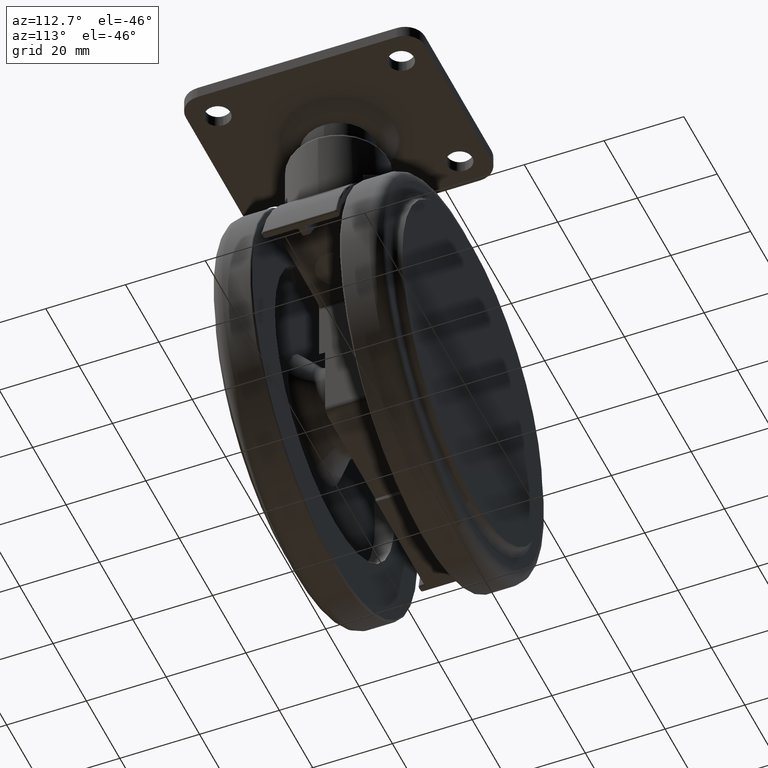
[diagram: clean part render]
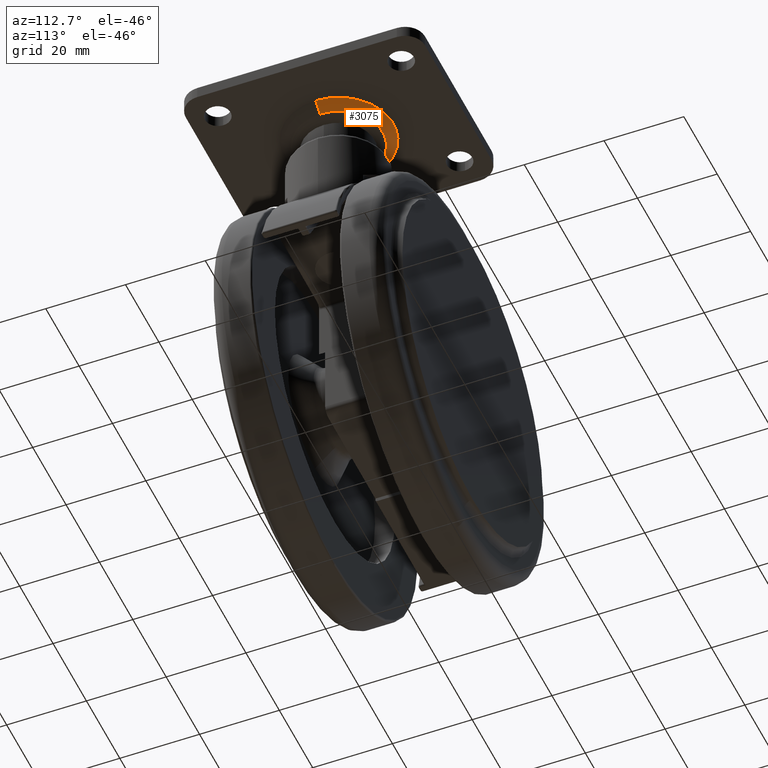
[diagram: same view with one face highlighted and labeled with its STEP entity id]
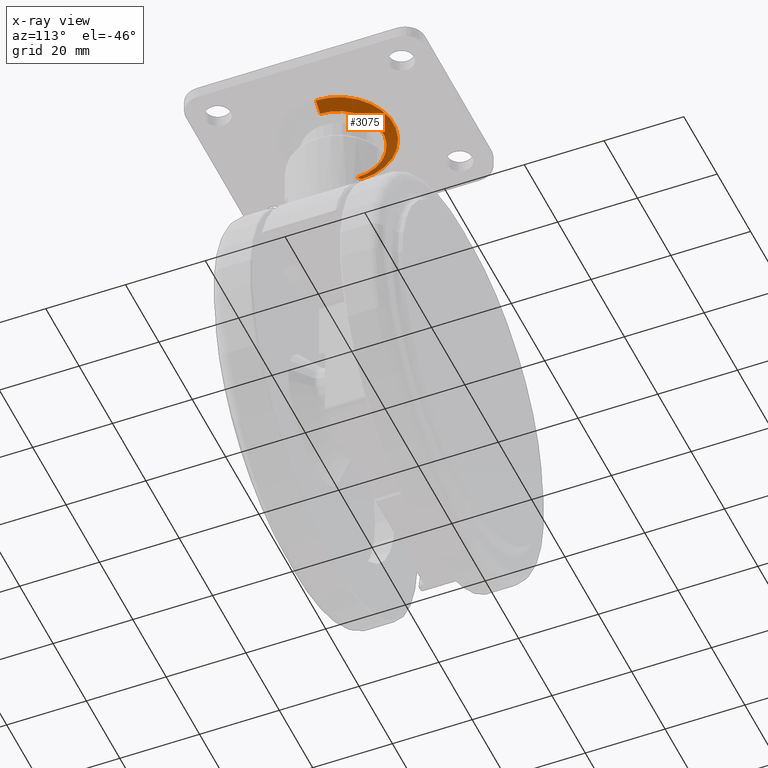
[diagram: x-ray of the same camera — body ghosted, the highlighted face saturated]
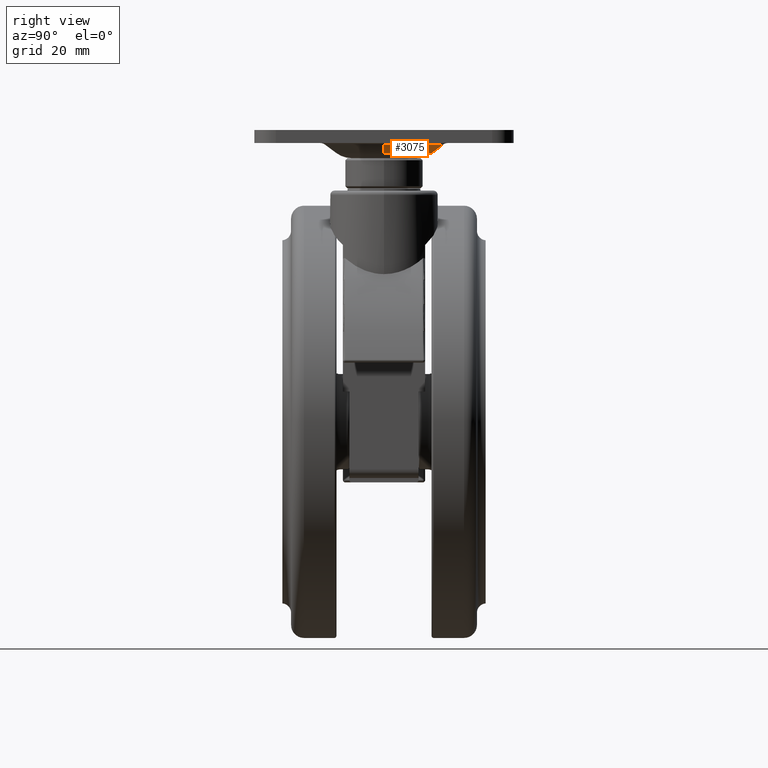
[diagram: same view with one face highlighted and labeled with its STEP entity id]
A machine part, auxiliary view. The second image highlights one B-rep face of the part: STEP entity #3075.
The next image is the same camera in x-ray: the body ghosted, the highlighted face saturated — about 9% of this face is hidden behind the body in this view.
A second angle (right view) of the same face is appended — the face is thin or edge-on in the first view.
In plain terms, the highlighted conical surface has half-angle 53.616 deg.
Its self-contained STEP definition (entity closure, byte-faithful):
#249 = EDGE_CURVE ( 'NONE', #4527, #5291, #4065, .T. ) ;
#424 = CARTESIAN_POINT ( 'NONE',  ( 11.08740246726539900, 0.0000000000000000000, 8.669664975879760100 ) ) ;
#778 = CARTESIAN_POINT ( 'NONE',  ( 0.0000000000000000000, 0.0000000000000000000, 10.61011167470678100 ) ) ;
#1317 = CARTESIAN_POINT ( 'NONE',  ( -13.72086584424488700, 1.680321443768475100E-015, 10.61011167470678100 ) ) ;
#1392 = LINE ( 'NONE', #8550, #4935 ) ;
#1460 = DIRECTION ( 'NONE',  ( -1.000000000000000000, 0.0000000000000000000, 0.0000000000000000000 ) ) ;
#2321 = AXIS2_PLACEMENT_3D ( 'NONE', #778, #5446, #1460 ) ;
#2637 = CARTESIAN_POINT ( 'NONE',  ( 0.0000000000000000000, 0.0000000000000000000, 8.669664975879760100 ) ) ;
#2782 = ORIENTED_EDGE ( 'NONE', *, *, #249, .F. ) ;
#2881 = CARTESIAN_POINT ( 'NONE',  ( 0.0000000000000000000, 0.0000000000000000000, 8.669664975879760100 ) ) ;
#3075 = ADVANCED_FACE ( 'NONE', ( #4347 ), #5894, .T. ) ;
#3191 = EDGE_CURVE ( 'NONE', #7837, #4603, #5054, .T. ) ;
#3655 = ORIENTED_EDGE ( 'NONE', *, *, #4350, .F. ) ;
#3847 = EDGE_LOOP ( 'NONE', ( #2782, #6523, #6953, #3655 ) ) ;
#4065 = CIRCLE ( 'NONE', #4229, 11.08740246726539900 ) ;
#4229 = AXIS2_PLACEMENT_3D ( 'NONE', #2637, #5996, #5283 ) ;
#4347 = FACE_OUTER_BOUND ( 'NONE', #3847, .T. ) ;
#4350 = EDGE_CURVE ( 'NONE', #5291, #4603, #5451, .T. ) ;
#4527 = VERTEX_POINT ( 'NONE', #5348 ) ;
#4587 = DIRECTION ( 'NONE',  ( -0.8050558373533637200, 9.859090543496891800E-017, 0.5931990380498557400 ) ) ;
#4603 = VERTEX_POINT ( 'NONE', #5234 ) ;
#4722 = AXIS2_PLACEMENT_3D ( 'NONE', #2881, #6870, #6572 ) ;
#4935 = VECTOR ( 'NONE', #4587, 1000.000000000000100 ) ;
#5054 = CIRCLE ( 'NONE', #2321, 13.72086584424490000 ) ;
#5070 = DIRECTION ( 'NONE',  ( 0.8050558373533637200, 0.0000000000000000000, 0.5931990380498557400 ) ) ;
#5234 = CARTESIAN_POINT ( 'NONE',  ( 13.72086584424488700, 0.0000000000000000000, 10.61011167470678100 ) ) ;
#5239 = CARTESIAN_POINT ( 'NONE',  ( 11.08740246726536300, 1.357815194239499600E-015, 8.669664975879760100 ) ) ;
#5283 = DIRECTION ( 'NONE',  ( -1.000000000000000000, 0.0000000000000000000, 0.0000000000000000000 ) ) ;
#5291 = VERTEX_POINT ( 'NONE', #5239 ) ;
#5348 = CARTESIAN_POINT ( 'NONE',  ( -11.08740246726536300, 0.0000000000000000000, 8.669664975879760100 ) ) ;
#5446 = DIRECTION ( 'NONE',  ( 0.0000000000000000000, 0.0000000000000000000, -1.000000000000000000 ) ) ;
#5451 = LINE ( 'NONE', #424, #7010 ) ;
#5894 = CONICAL_SURFACE ( 'NONE', #4722, 11.08740246726539900, 0.9357695914045758300 ) ;
#5996 = DIRECTION ( 'NONE',  ( 0.0000000000000000000, 0.0000000000000000000, -1.000000000000000000 ) ) ;
#6523 = ORIENTED_EDGE ( 'NONE', *, *, #7427, .T. ) ;
#6572 = DIRECTION ( 'NONE',  ( 1.000000000000000000, 0.0000000000000000000, 0.0000000000000000000 ) ) ;
#6870 = DIRECTION ( 'NONE',  ( 0.0000000000000000000, 0.0000000000000000000, 1.000000000000000000 ) ) ;
#6953 = ORIENTED_EDGE ( 'NONE', *, *, #3191, .T. ) ;
#7010 = VECTOR ( 'NONE', #5070, 1000.000000000000100 ) ;
#7427 = EDGE_CURVE ( 'NONE', #4527, #7837, #1392, .T. ) ;
#7837 = VERTEX_POINT ( 'NONE', #1317 ) ;
#8550 = CARTESIAN_POINT ( 'NONE',  ( -11.08740246726539900, 1.357815194239503900E-015, 8.669664975879760100 ) ) ;